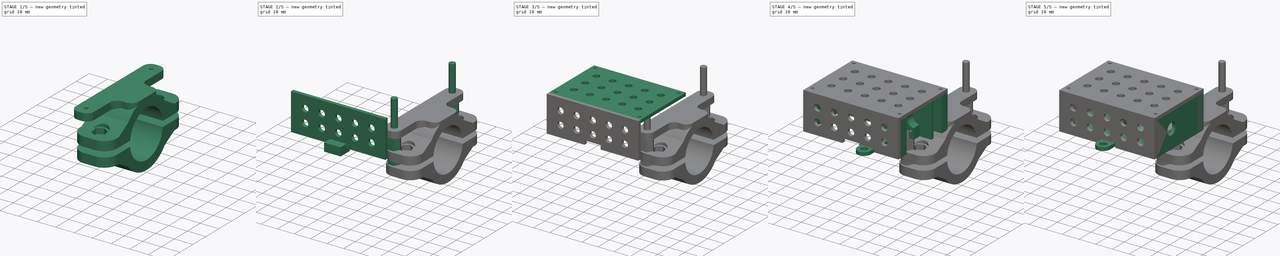
[diagram: build sequence overview — one tinted view per stage of 5, left to right]
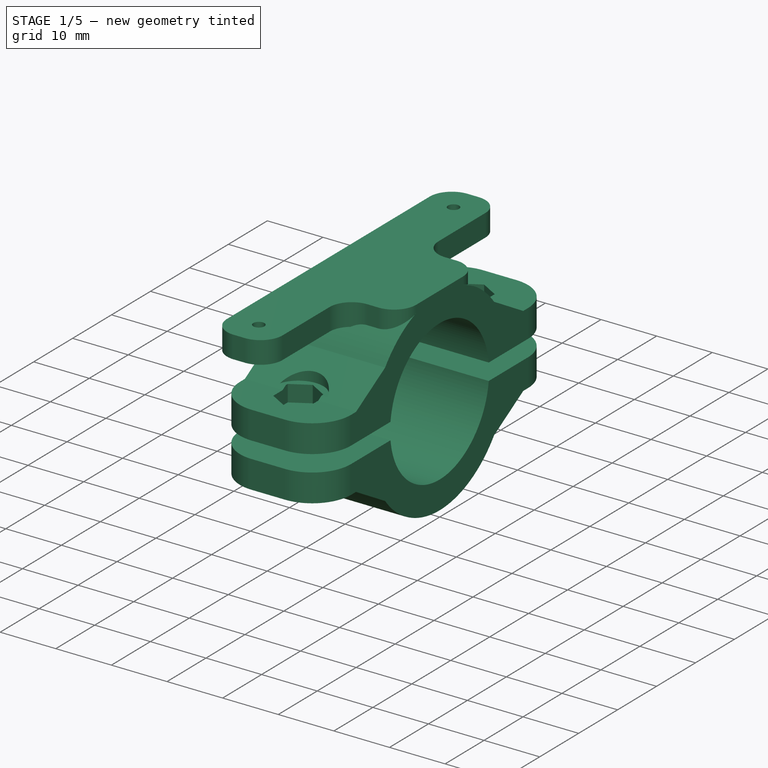
[diagram: stage 1 of 5 — iso view after this stage's code; geometry added in this stage tinted green]
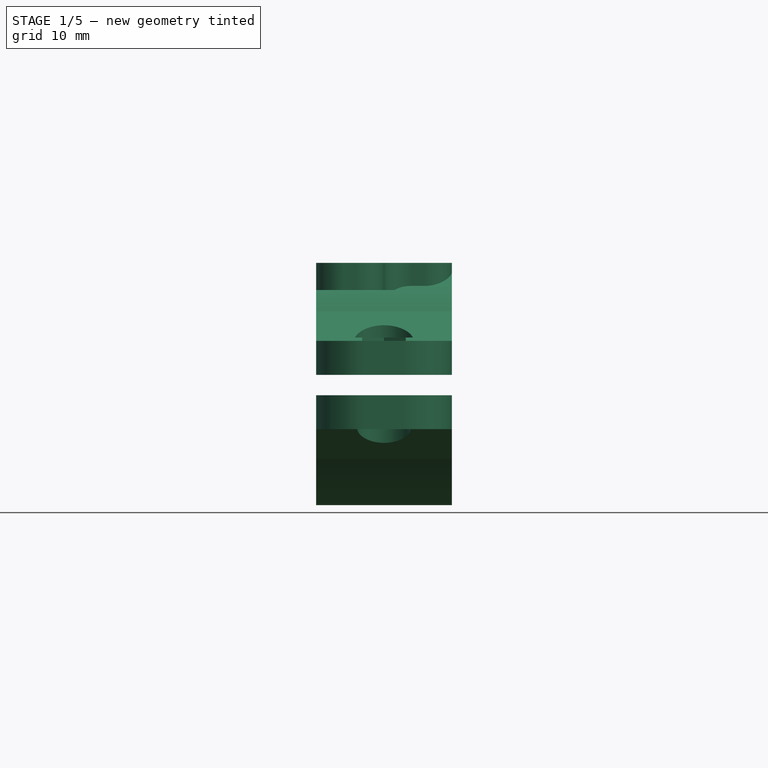
[diagram: stage 1 of 5 — front view after this stage's code; geometry added in this stage tinted green]
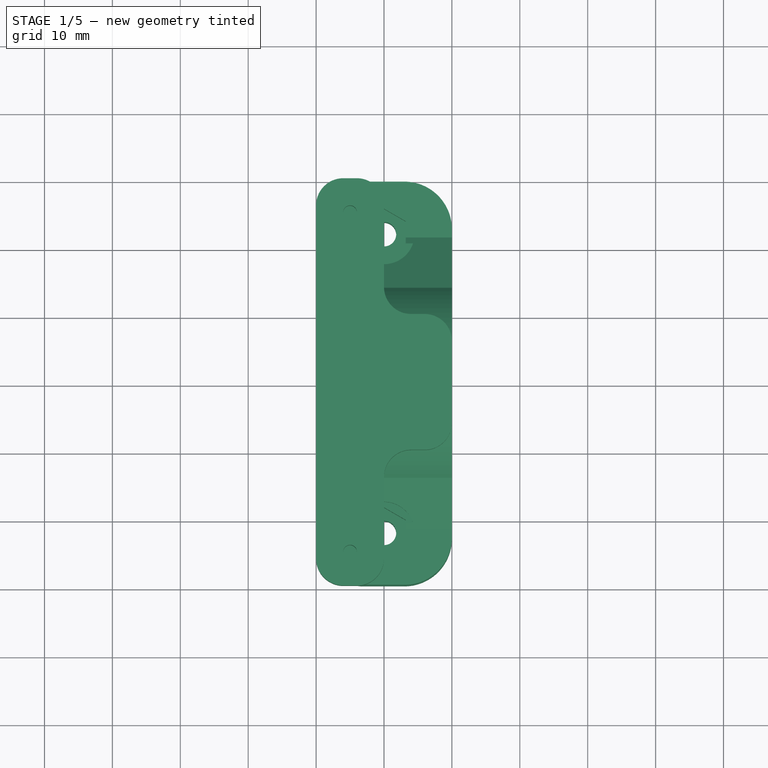
[diagram: stage 1 of 5 — top view after this stage's code; geometry added in this stage tinted green]
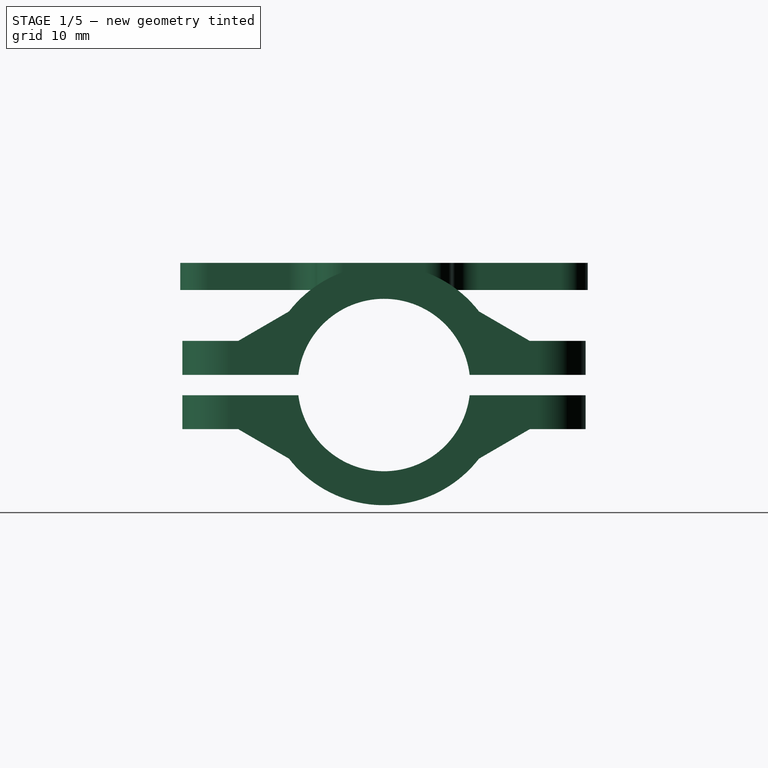
[diagram: stage 1 of 5 — right view after this stage's code; geometry added in this stage tinted green]
FCSTD DOCUMENT  (FreeCAD 0.18.4R)
Label: mosfet_aod4184_box_screw_version
License: All rights reserved
LicenseURL: http://en.wikipedia.org/wiki/All_rights_reserved
objects: Sketcher::SketchObject×11, PartDesign::Pad×9, PartDesign::Body×9, Part::Cut×8, Part::Cylinder×6, Part::FeaturePython×6, Part::Box×5, Part::Compound×3, App::Part×3, PartDesign::Revolution×2, Part::Feature×2, Part::MultiFuse×2, Part::Fillet×2, Spreadsheet::Sheet×1
note: 76 computed .brp shape members not serialized (recipe doc carries the construction recipe); baked Part::Feature solids carry a one-line shape summary decoded from their .brp

FEATURE [App::Part] Part001  label="top cover"
  Group = -> [Array001,Box,Cylinder001,Cut003,Box001,Array002,Cylinder002,Cut004,Array003,Cylinder003,Cut005,Box002,Cut006,Compound001]
  Origin = -> Origin010
FEATURE [Part::Feature] Cut023015001  label="tube block cut002"
  Placement = pos=(0,30,-14) rot=(0.57735,0.57735,0.57735;2.0944rad)
  shape: bbox 20 x 59.4 x 35.4 mm, 58 faces, 2 solids (baked)
FEATURE [Part::Feature] Body032001  label="m3 nut hole"
  Placement = pos=(0,0,0) rot=(1,0,0;1.5708rad)
  shape: bbox 7.4 x 6.409 x 20 mm, 8 faces (baked)
FEATURE [Part::Box] Box004  label="mount cube"
  AttacherType = Attacher::AttachEngine3D
  Height = 4
  Length = 10
  Width = 60
FEATURE [Part::Fillet] Fillet  label="ear mount fillet"
  Base = -> Box004
  Edges = 4 edges r=4: [Edge1,Edge3,Edge5,Edge7]
FEATURE [Part::Box] Box005  label="mount plate"
  AttacherType = Attacher::AttachEngine3D
  Height = 4
  Length = 20
  Placement = pos=(0,20,0) rot=(0,0,1;0rad)
  Width = 20
FEATURE [Part::MultiFuse] Fusion001  label="ear mount fusion"
  Shapes = -> [Fillet,Box005]
FEATURE [Part::Fillet] Fillet001  label="ear mount fusion fillet"
  Base = -> Fusion001
  Edges = 4 edges r=4: [Edge41,Edge46,Edge47,Edge48]
FEATURE [Part::Cylinder] Cylinder005  label="Cylinder003"
  Angle = 360
  AttacherType = Attacher::AttachEngine3D
  Height = 20
  Placement = pos=(0,0,40) rot=(0,0,1;0rad)
  Radius = 1
FEATURE [Part::FeaturePython] Array005  label="ear screw hole fusion array"  # Draft array (typed FeaturePython)
  Angle = 360
  ArrayType = 0
  Axis = (0,0,1)
  Base = -> Cylinder005
  Center = (0,0,0)
  Fuse = false
  IntervalAxis = (0,0,0)
  IntervalX = (1,0,0)
  IntervalY = (0,50,0)
  IntervalZ = (0,0,1)
  NumberPolar = 1
  NumberX = 1
  NumberY = 2
  NumberZ = 1
  Placement = pos=(5,5,-40) rot=(0,0,1;0rad)
  expr: IntervalY.y = p.box_sz_y + 10mm
FEATURE [Part::Cut] Cut023015002  label="ear mount cut"
  Base = -> Fillet001
  Tool = -> Array005
FEATURE [Part::Compound] Compound002  label="25mm pipe attach compound"
  Links = -> [Cut023015001,Cut023015002]
FEATURE [App::Part] Part002  label="25mm pipe attach part"
  Group = -> [Cut023015001,Body032001,Cylinder004,Fusion,Array004,Cut023015002,Fusion001,Fillet001,Box005,Box004,Fillet,Compound002]
  Origin = -> Origin011
  Placement = pos=(-15,-30,-4) rot=(0,0,1;0rad)
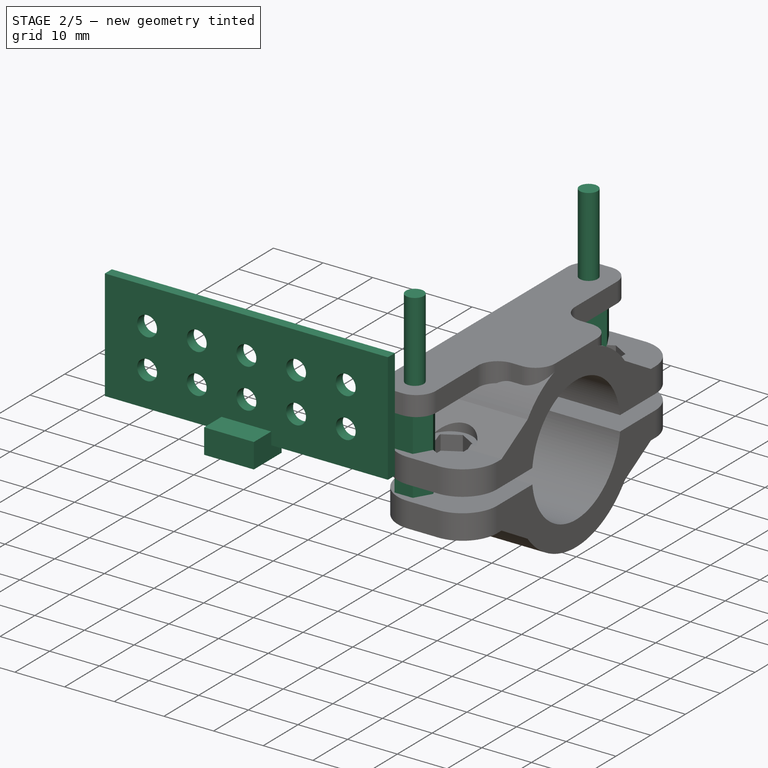
[diagram: stage 2 of 5 — iso view after this stage's code; geometry added in this stage tinted green]
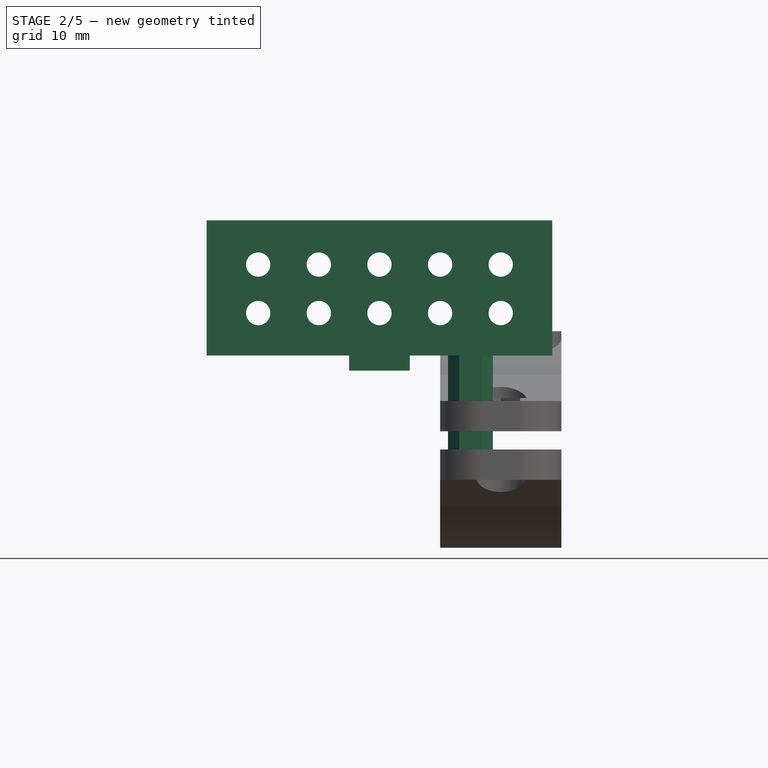
[diagram: stage 2 of 5 — front view after this stage's code; geometry added in this stage tinted green]
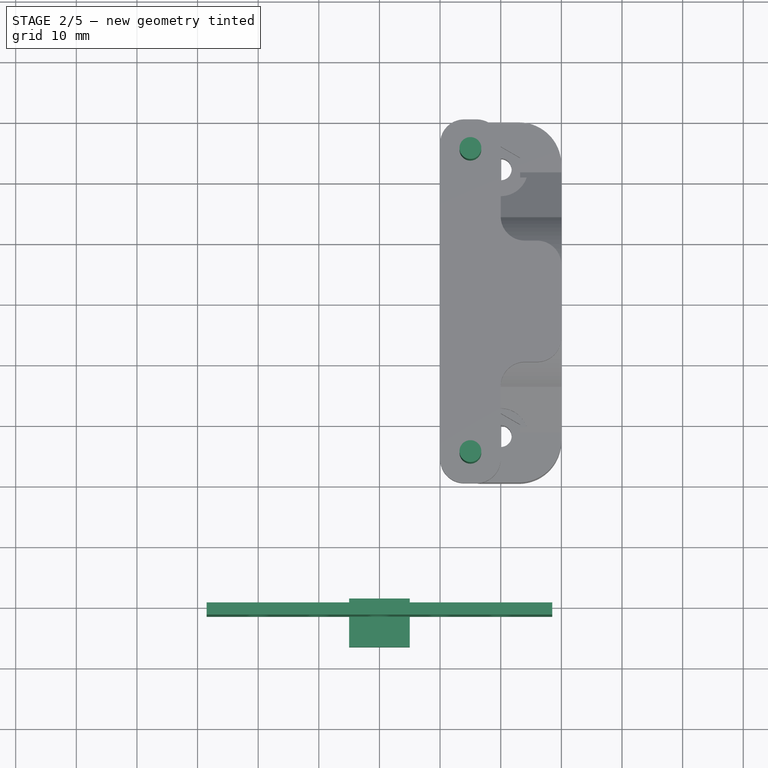
[diagram: stage 2 of 5 — top view after this stage's code; geometry added in this stage tinted green]
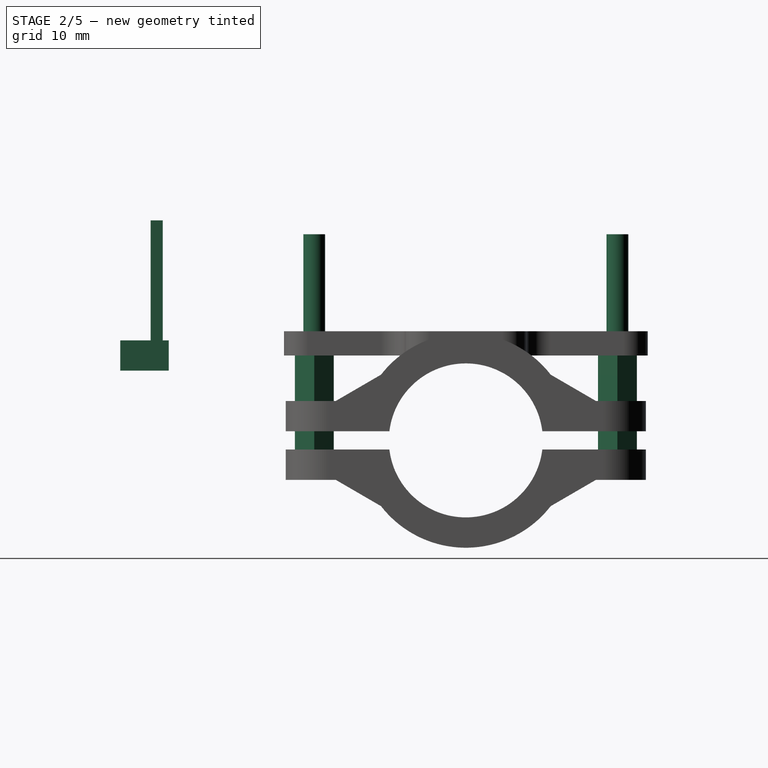
[diagram: stage 2 of 5 — right view after this stage's code; geometry added in this stage tinted green]
FEATURE [Part::Box] Box001  label="wall_cube"
  AttacherType = Attacher::AttachEngine3D
  Height = 22.3
  Length = 57
  Placement = pos=(-38.5,-22,0) rot=(0,0,1;0rad)
  Width = 2
  expr: Placement.Base.y = -p.wall - 20mm
  expr: Height = p.box_sz_z
  expr: Width = p.wall
  expr: Length = p.box_sz_x
FEATURE [Part::Cylinder] Cylinder003  label="Cylinder001"
  Angle = 360
  AttacherType = Attacher::AttachEngine3D
  Height = 10
  Placement = pos=(-30,-16,7) rot=(1,0,0;1.5708rad)
  Radius = 2
FEATURE [Part::FeaturePython] Array003  # Draft array (typed FeaturePython)
  Angle = 360
  ArrayType = 0
  Axis = (0,0,1)
  Base = -> Cylinder003
  Center = (0,0,0)
  Fuse = false
  IntervalAxis = (0,0,0)
  IntervalX = (10,0,0)
  IntervalY = (0,0,0)
  IntervalZ = (0,0,8)
  NumberPolar = 1
  NumberX = 5
  NumberY = 1
  NumberZ = 2
FEATURE [Part::Cut] Cut005  label="wall cut"
  Base = -> Box001
  Tool = -> Array003
FEATURE [Part::Box] Box002  label="Cube"
  AttacherType = Attacher::AttachEngine3D
  Height = 5
  Length = 10
  Placement = pos=(-15,-27,-2.5) rot=(0,0,1;0rad)
  Width = 8
FEATURE [Part::Cylinder] Cylinder004  label="Cylinder002"
  Angle = 360
  AttacherType = Attacher::AttachEngine3D
  Height = 20
  Placement = pos=(0,0,40) rot=(0,0,1;0rad)
  Radius = 1.8
FEATURE [Part::MultiFuse] Fusion  label="bolt nut hole fusion"
  Shapes = -> [Body032001,Cylinder004]
FEATURE [Part::FeaturePython] Array004  label="bolt nut hole fusion array"  # Draft array (typed FeaturePython)
  Angle = 360
  ArrayType = 0
  Axis = (0,0,1)
  Base = -> Fusion
  Center = (0,0,0)
  Fuse = false
  IntervalAxis = (0,0,0)
  IntervalX = (1,0,0)
  IntervalY = (0,50,0)
  IntervalZ = (0,0,1)
  NumberPolar = 1
  NumberX = 1
  NumberY = 2
  NumberZ = 1
  Placement = pos=(5,5,-40) rot=(0,0,1;0rad)
  expr: IntervalY.y = p.box_sz_y + 10mm
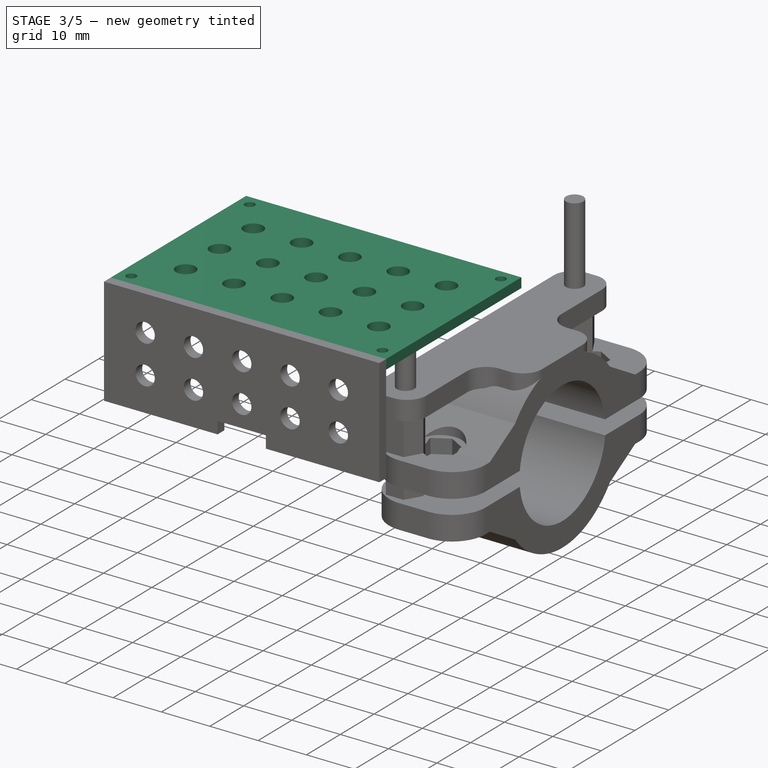
[diagram: stage 3 of 5 — iso view after this stage's code; geometry added in this stage tinted green]
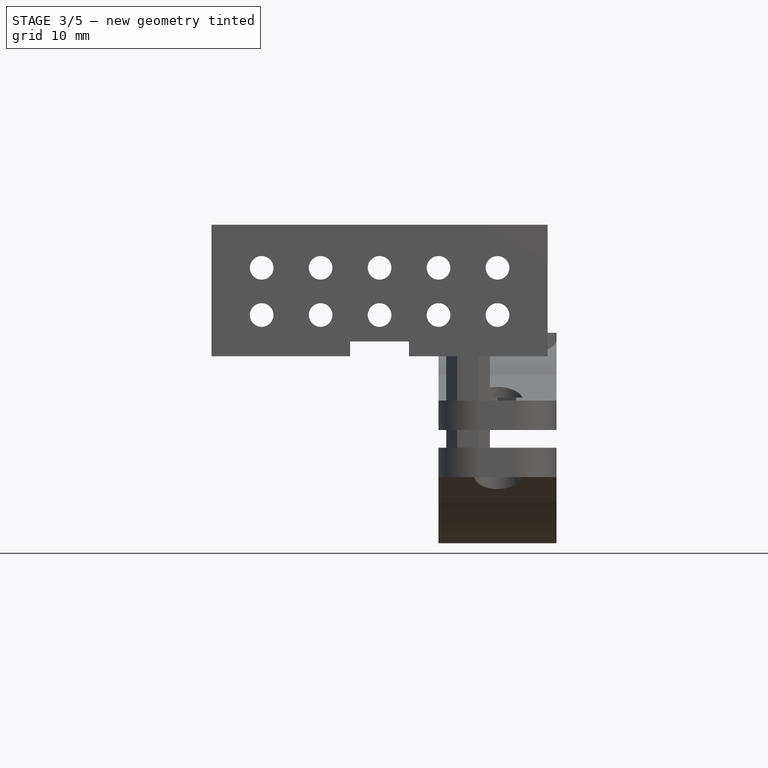
[diagram: stage 3 of 5 — front view after this stage's code; geometry added in this stage tinted green]
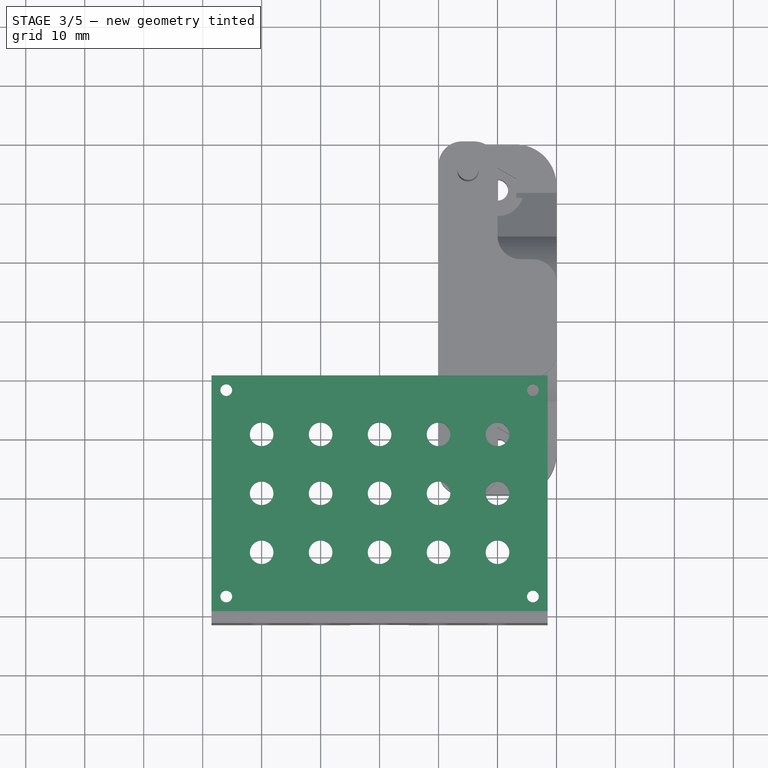
[diagram: stage 3 of 5 — top view after this stage's code; geometry added in this stage tinted green]
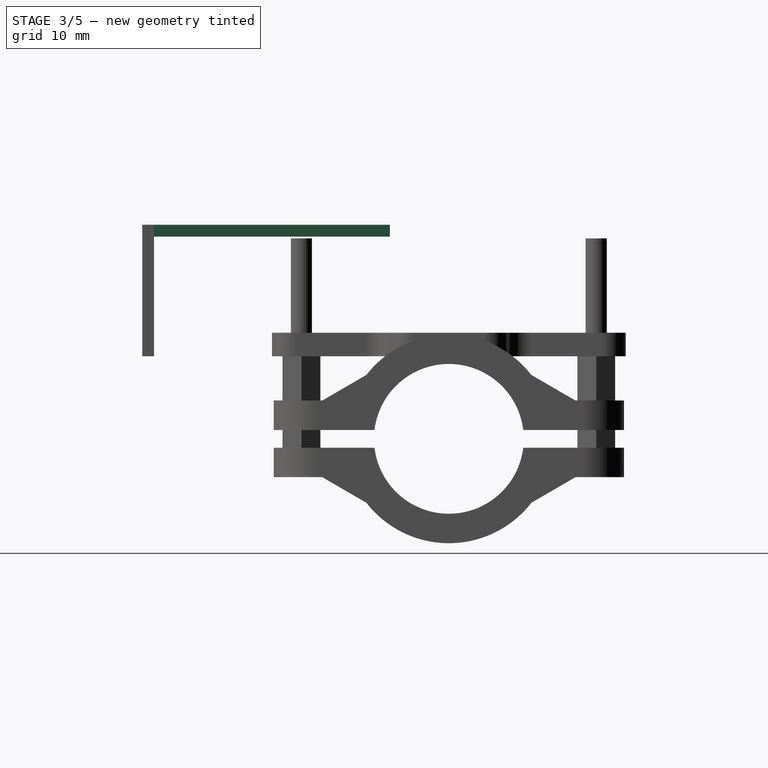
[diagram: stage 3 of 5 — right view after this stage's code; geometry added in this stage tinted green]
FEATURE [App::Part] Part  label="pcb_box"
  Group = -> [Body,Body002,Body003,Body004,Body005,Body006,Body007,Body008,Cut001,Cut002,Cut,Cylinder,Compound,Array]
  Origin = -> Origin002
FEATURE [Part::Box] Box  label="top_cube"
  AttacherType = Attacher::AttachEngine3D
  Height = 2
  Length = 57
  Placement = pos=(-38.5,-20,20.3) rot=(0,0,1;0rad)
  Width = 40
  expr: Placement.Base.z = p.box_sz_z - p.wall
  expr: Height = p.wall
  expr: Width = p.box_sz_y
  expr: Length = p.box_sz_x
FEATURE [Part::Cylinder] Cylinder001  label="a hole"
  Angle = 360
  AttacherType = Attacher::AttachEngine3D
  Height = 10
  Placement = pos=(-36,-17.5,18) rot=(0,0,1;0rad)
  Radius = 1
FEATURE [Part::FeaturePython] Array001  # Draft array (typed FeaturePython)
  Angle = 360
  ArrayType = 0
  Axis = (0,0,1)
  Base = -> Cylinder001
  Center = (0,0,0)
  Fuse = false
  IntervalAxis = (0,0,0)
  IntervalX = (52,0,0)
  IntervalY = (0,35,0)
  IntervalZ = (0,0,1)
  NumberPolar = 1
  NumberX = 2
  NumberY = 2
  NumberZ = 1
  expr: IntervalY.y = p.box_sz_y - 5mm
  expr: IntervalX.x = p.box_sz_x - 5mm
FEATURE [Part::Cut] Cut003
  Base = -> Box
  Tool = -> Array001
FEATURE [Part::Cylinder] Cylinder002  label="Cylinder"
  Angle = 360
  AttacherType = Attacher::AttachEngine3D
  Height = 10
  Placement = pos=(-30,-10,17) rot=(0,0,1;0rad)
  Radius = 2
FEATURE [Part::FeaturePython] Array002  # Draft array (typed FeaturePython)
  Angle = 360
  ArrayType = 0
  Axis = (0,0,1)
  Base = -> Cylinder002
  Center = (0,0,0)
  Fuse = false
  IntervalAxis = (0,0,0)
  IntervalX = (10,0,0)
  IntervalY = (0,10,0)
  IntervalZ = (0,0,1)
  NumberPolar = 1
  NumberX = 5
  NumberY = 3
  NumberZ = 1
FEATURE [Part::Cut] Cut004  label="top cut"
  Base = -> Cut003
  Tool = -> Array002
FEATURE [Part::Cut] Cut006  label="wall cut 1"
  Base = -> Cut005
  Tool = -> Box002
FEATURE [Part::Compound] Compound001  label="top cover compound"
  Links = -> [Cut004,Cut006]
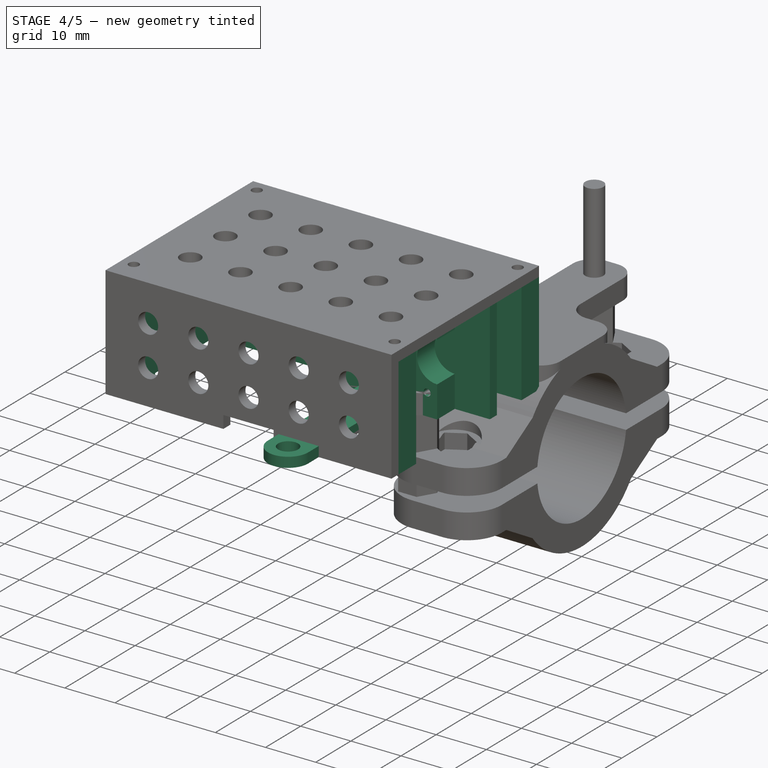
[diagram: stage 4 of 5 — iso view after this stage's code; geometry added in this stage tinted green]
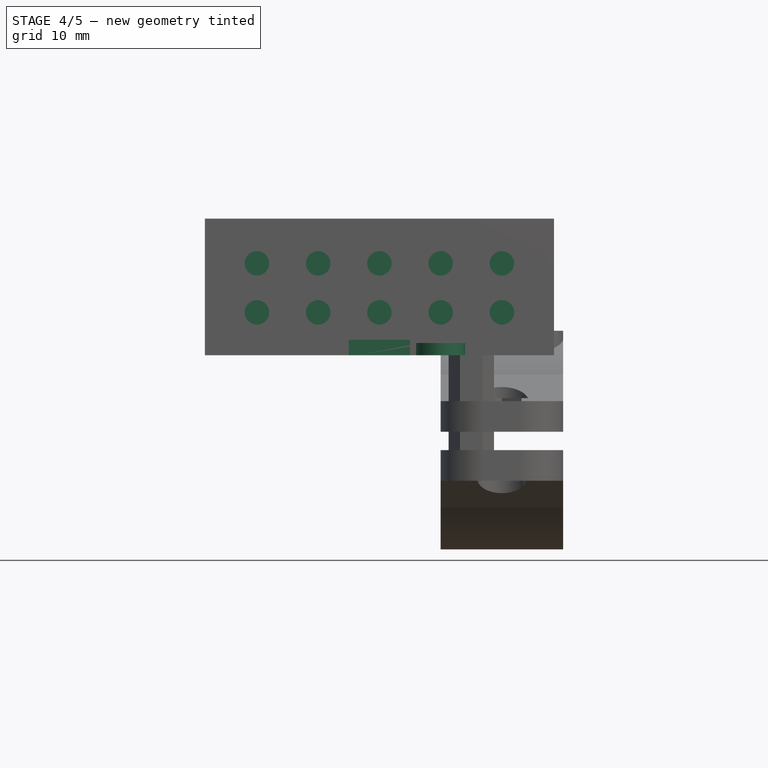
[diagram: stage 4 of 5 — front view after this stage's code; geometry added in this stage tinted green]
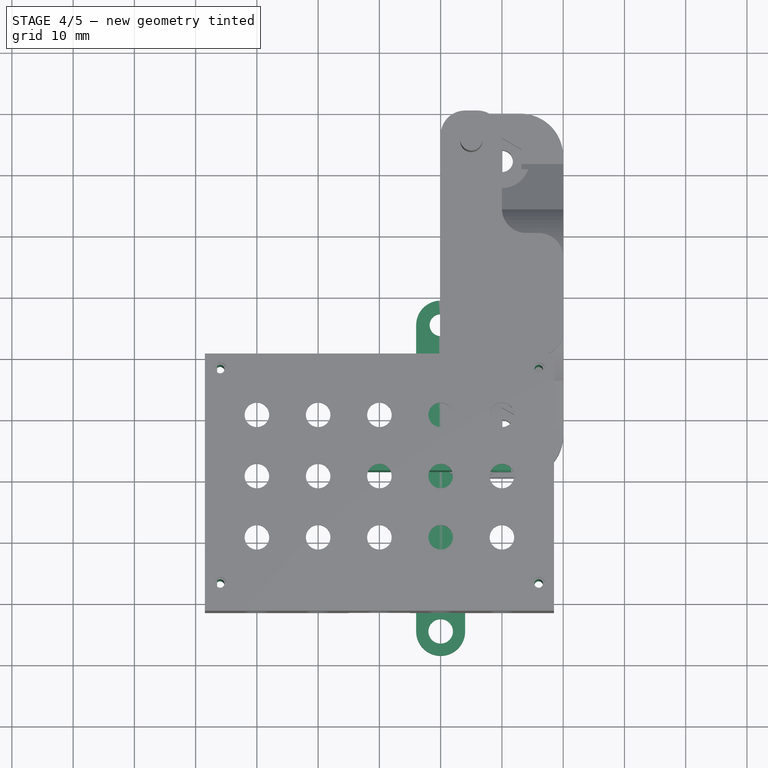
[diagram: stage 4 of 5 — top view after this stage's code; geometry added in this stage tinted green]
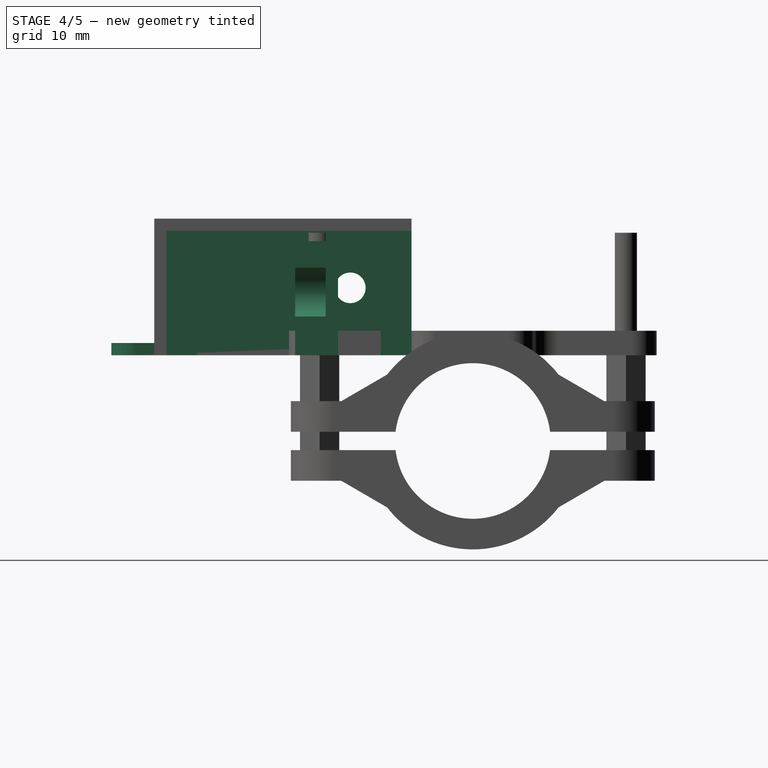
[diagram: stage 4 of 5 — right view after this stage's code; geometry added in this stage tinted green]
FEATURE [PartDesign::Body] Body005  label="power socket mockup"
  Group = -> [Sketch006,Revolution]
  Origin = -> Origin006
  Placement = pos=(-36,-5.5,11) rot=(0,0,1;0rad)
  Tip = -> Revolution
FEATURE [PartDesign::Pad] Pad
  Length = 2
  Length2 = 100
  Placement = pos=(0,0,0) rot=(1,0,0;1.5708rad)
  Profile = -> Sketch001
  Type = 0
  expr: Length = p.wall
FEATURE [PartDesign::Body] Body002  label="bottom body"
  Group = -> [Sketch004,Pad004]
  Origin = -> Origin003
  Tip = -> Pad004
FEATURE [PartDesign::Pad] Pad005
  Length = 2
  Length2 = 100
  Placement = pos=(0,0,0) rot=(0.57735,0.57735,0.57735;2.0944rad)
  Profile = -> Sketch
  Type = 0
  expr: Length = p.wall
FEATURE [Sketcher::SketchObject] Sketch008  label="pcb_under"
  MapMode = 5
  Placement = pos=(0,6,0) rot=(1,0,0;1.5708rad)
  Support = -> [Pad]
  expr: Constraints[13] = p.pcb_hole_offset + 0.3mm
  expr: Constraints[6] = p.pcb_hole_offset
  expr: Constraints[5] = p.pcb_hole_dist
  sketch-geometry (8):
    g0: LineSegment StartX=11.5 StartY=0 StartZ=0 EndX=-13.5 EndY=0 EndZ=0
    g1: LineSegment StartX=-13.5 StartY=18.62 StartZ=0 EndX=11.5 EndY=18.62 EndZ=0
    g2: Circle CenterX=9.5 CenterY=16.32 CenterZ=0 NormalX=0 NormalY=0 NormalZ=1 AngleXU=0 Radius=0.7
    g3: Circle CenterX=9.5 CenterY=4.32 CenterZ=0 NormalX=0 NormalY=0 NormalZ=1 AngleXU=0 Radius=0.7
    g4: LineSegment StartX=-13.5 StartY=18.62 StartZ=0 EndX=-13.5 EndY=0 EndZ=0
    g5: LineSegment StartX=11.5 StartY=0 StartZ=0 EndX=11.5 EndY=6.32 EndZ=0
    g6: ArcOfCircle CenterX=11.5 CenterY=10.32 CenterZ=0 NormalX=0 NormalY=0 NormalZ=1 AngleXU=0 Radius=4 StartAngle=1.5708 EndAngle=4.71239
    g7: LineSegment StartX=11.5 StartY=18.62 StartZ=0 EndX=11.5 EndY=14.32 EndZ=0
  constraints (25):
    c: Horizontal(g0)
    c: Horizontal(g1)
    c: Radius(g2) = 0.7
    c: DistanceX(g3,g2) = 0
    c: Equal(g2,g3)
    c: DistanceY(g3,g2) = 12
    c: DistanceX(g3,g0) = 2
    c: DistanceY(g-1,g0) = 0
    c: DistanceX(g0,g-1) = 13.5
    c: Coincident(g4,g1)
    c: Coincident(g4,g0)
    c: Vertical(g4)
    c: DistanceX(g0,g0) = 25
    c: DistanceY(g2,g1) = 2.3
    c: DistanceY(g4,g4) = 18.62
    c: Coincident(g5,g0)
    c: Vertical(g5)
    c: Coincident(g6,g5)
    c: DistanceX(g5,g6) = 0
    c: DistanceY(g3,g5) = 2
    c: Coincident(g7,g1)
    c: Vertical(g7)
    c: Coincident(g6,g7)
    c: DistanceY(g6,g2) = 2
    c: Radius(g6) = 4
FEATURE [Part::Cylinder] Cylinder  label="wire_hole"
  Angle = 360
  AttacherType = Attacher::AttachEngine3D
  Height = 10
  Placement = pos=(-41,10,11) rot=(0,1,0;1.5708rad)
  Radius = 2.5
FEATURE [Part::Cut] Cut  label="power cut"
  Base = -> Body003
  Tool = -> Cylinder
FEATURE [PartDesign::Pad] Pad007
  BaseFeature = -> Pad
  Length = 5
  Length2 = 100
  Placement = pos=(0,0,0) rot=(1,0,0;1.5708rad)
  Profile = -> Sketch008
  Type = 0
FEATURE [PartDesign::Body] Body  label="pcb_side_body"
  Group = -> [Sketch001,Pad,Sketch008,Pad007]
  Origin = -> Origin
  Placement = pos=(0,12,0) rot=(0,0,1;0rad)
  Tip = -> Pad007
FEATURE [Sketcher::SketchObject] Sketch009
  MapMode = 5
  Support = -> [XY_Plane008]
  sketch-geometry (5):
    g0: LineSegment StartX=-2.5 StartY=2.5 StartZ=0 EndX=2.5 EndY=2.5 EndZ=0
    g1: LineSegment StartX=2.5 StartY=2.5 StartZ=0 EndX=2.5 EndY=-2.5 EndZ=0
    g2: LineSegment StartX=2.5 StartY=-2.5 StartZ=0 EndX=-2.5 EndY=-2.5 EndZ=0
    g3: LineSegment StartX=-2.5 StartY=-2.5 StartZ=0 EndX=-2.5 EndY=2.5 EndZ=0
    g4: Circle CenterX=0 CenterY=0 CenterZ=0 NormalX=0 NormalY=0 NormalZ=1 AngleXU=0 Radius=0.7
  constraints (14):
    c: Coincident(g0,g1)
    c: Coincident(g1,g2)
    c: Coincident(g2,g3)
    c: Coincident(g3,g0)
    c: Horizontal(g0)
    c: Horizontal(g2)
    c: Vertical(g1)
    c: Vertical(g3)
    c: Coincident(g4,g-1)
    c: DistanceX(g2,g2) = 5
    c: Equal(g1,g2)
    c: DistanceX(g0,g4) = 2.5
    c: DistanceY(g4,g0) = 2.5
    c: Radius(g4) = 0.7
FEATURE [PartDesign::Pad] Pad008
  Length = 20.3
  Length2 = 100
  Profile = -> Sketch009
  Type = 0
  expr: Length = p.box_sz_z - p.wall
FEATURE [PartDesign::Body] Body007  label="attachment_body"
  Group = -> [Sketch009,Pad008]
  Origin = -> Origin008
  Placement = pos=(-36,-17.5,0) rot=(0,0,1;0rad)
  Tip = -> Pad008
FEATURE [Part::FeaturePython] Array  # Draft array (typed FeaturePython)
  Angle = 360
  ArrayType = 0
  Axis = (0,0,1)
  Base = -> Body007
  Center = (0,0,0)
  Fuse = false
  IntervalAxis = (0,0,0)
  IntervalX = (52,0,0)
  IntervalY = (0,35,0)
  IntervalZ = (0,0,1)
  NumberPolar = 1
  NumberX = 2
  NumberY = 2
  NumberZ = 1
  expr: IntervalY.y = p.box_sz_y - 5mm
  expr: IntervalX.x = p.box_sz_x - 5mm
FEATURE [Sketcher::SketchObject] Sketch010  label="mount"
  MapMode = 5
  expr: Constraints[0] = p.box_sz_y + 10mm
  sketch-geometry (6):
    g0: LineSegment StartX=4 StartY=25 StartZ=0 EndX=4 EndY=-25 EndZ=0
    g1: LineSegment StartX=-4 StartY=-25 StartZ=0 EndX=-4 EndY=25 EndZ=0
    g2: ArcOfCircle CenterX=6e-15 CenterY=25 CenterZ=0 NormalX=0 NormalY=0 NormalZ=1 AngleXU=0 Radius=4 StartAngle=5e-16 EndAngle=3.14159
    g3: ArcOfCircle CenterX=0 CenterY=-25 CenterZ=0 NormalX=0 NormalY=0 NormalZ=1 AngleXU=0 Radius=4 StartAngle=3.14159 EndAngle=6.28319
    g4: Circle CenterX=6e-15 CenterY=25 CenterZ=0 NormalX=0 NormalY=0 NormalZ=1 AngleXU=0 Radius=1.8
    g5: Circle CenterX=0 CenterY=-25 CenterZ=0 NormalX=0 NormalY=0 NormalZ=1 AngleXU=0 Radius=2
  constraints (13):
    c: DistanceY(g0,g0) = 50
    c: Equal(g1,g0)
    c: DistanceX(g1,g0) = 8
    c: Symmetric(g0,g0,g-1)
    c: Tangent(g2,g1) = 1.5708
    c: Coincident(g4,g2)
    c: Coincident(g5,g3)
    c: Radius(g5) = 2
    c: Radius(g4) = 1.8
    c: Tangent(g3,g1) = 1.5708
    c: Tangent(g3,g0) = 1.5708
    c: Coincident(g2,g0)
    c: Symmetric(g0,g1,g-2)
FEATURE [PartDesign::Pad] Pad009
  Length = 2
  Length2 = 100
  Profile = -> Sketch010
  Type = 0
  expr: Length = p.wall
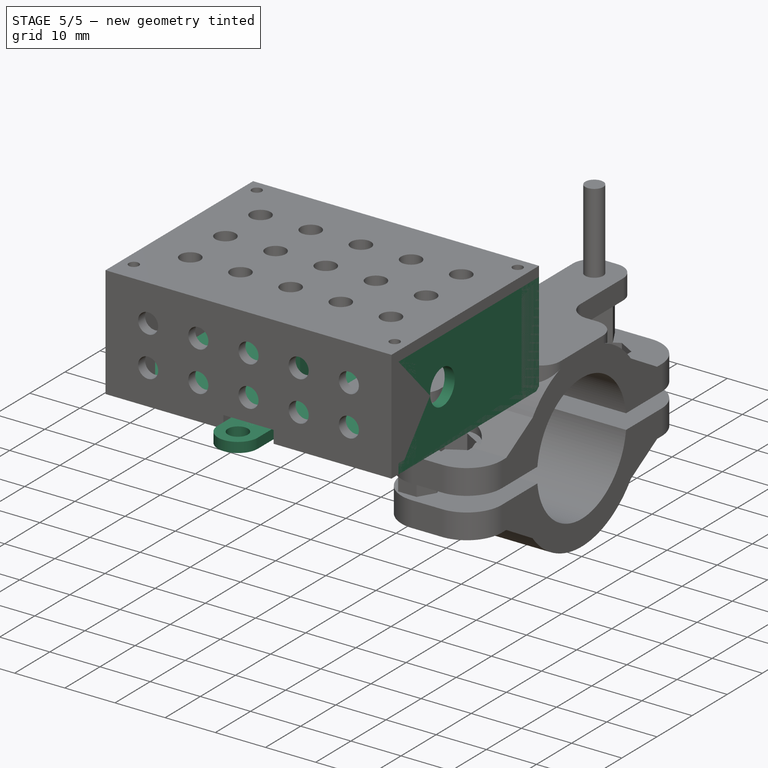
[diagram: stage 5 of 5 — iso view after this stage's code; geometry added in this stage tinted green]
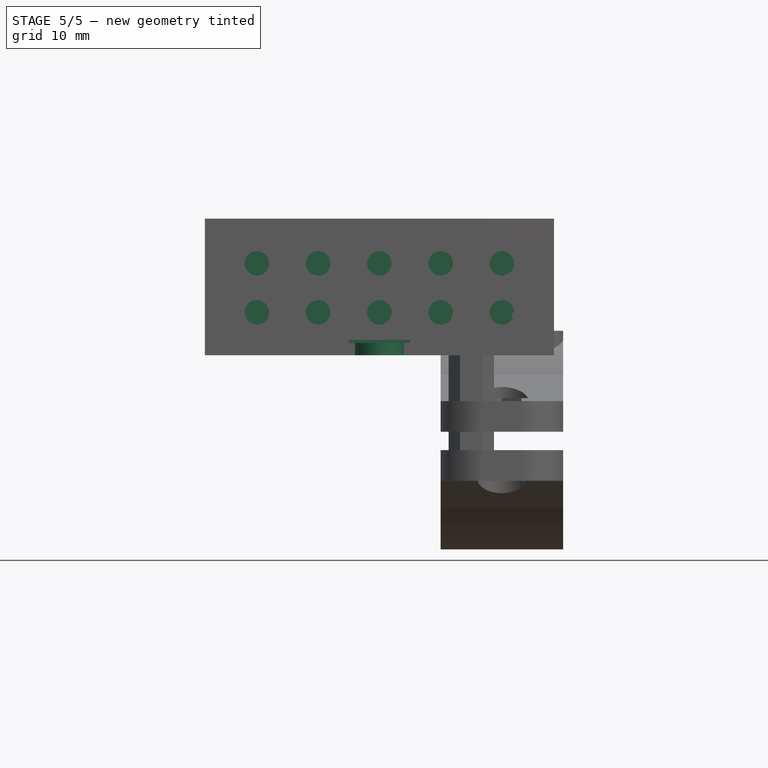
[diagram: stage 5 of 5 — front view after this stage's code; geometry added in this stage tinted green]
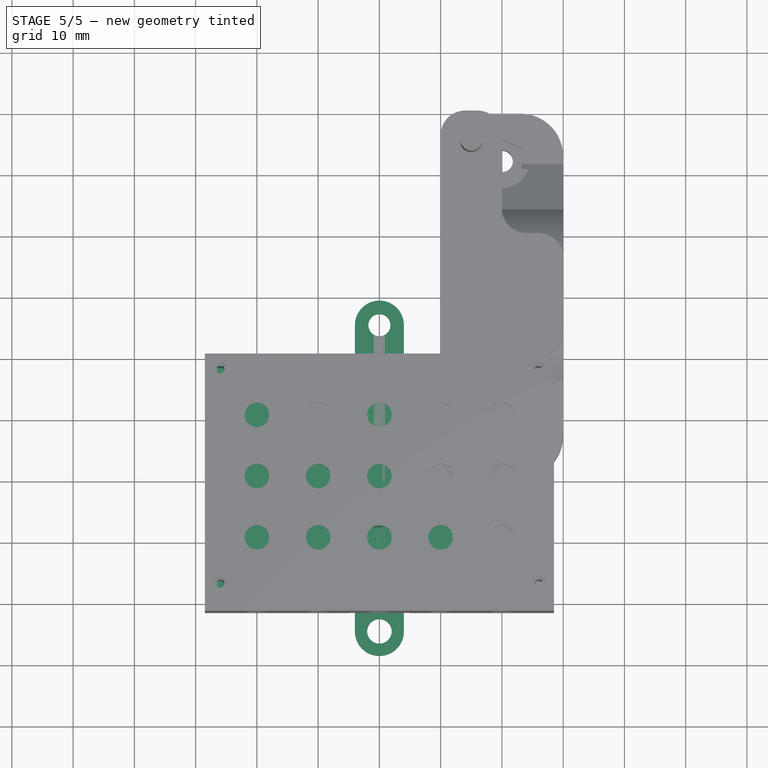
[diagram: stage 5 of 5 — top view after this stage's code; geometry added in this stage tinted green]
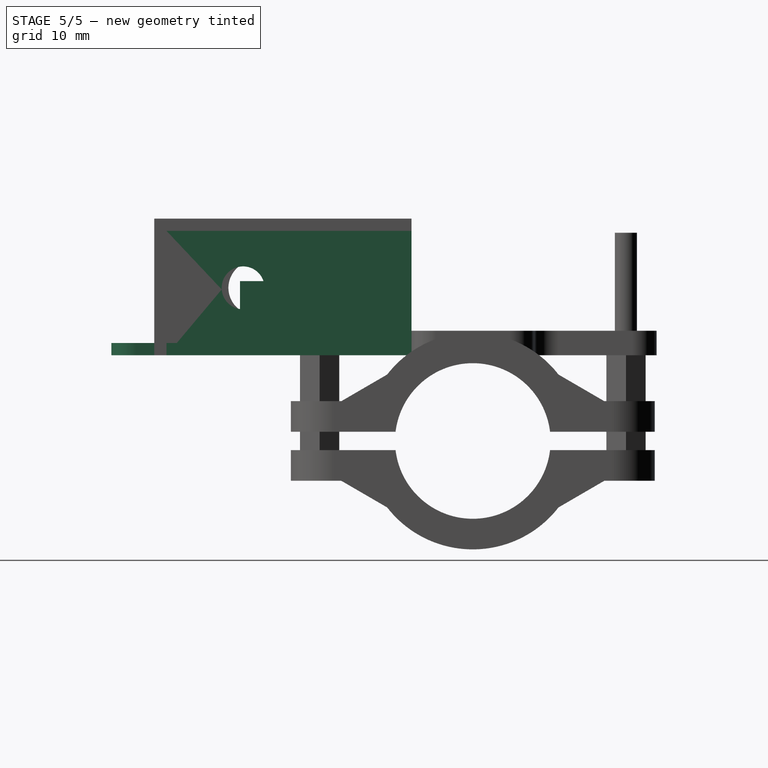
[diagram: stage 5 of 5 — right view after this stage's code; geometry added in this stage tinted green]
FEATURE [Sketcher::SketchObject] Sketch001  label="pcb_side"
  AttachmentOffset = pos=(0,0,-8) rot=(0,0,1;0rad)
  MapMode = 5
  Placement = pos=(0,8,1.8e-15) rot=(1,0,0;1.5708rad)
  Support = -> [XZ_Plane]
  expr: Constraints[10] = p.pcb_sz_x / 2 + p.wall
  expr: Constraints[8] = p.box_sz_z - p.wall
  expr: Constraints[7] = p.box_sz_x
  sketch-geometry (4):
    g0: LineSegment StartX=-38.5 StartY=20.3 StartZ=0 EndX=18.5 EndY=20.3 EndZ=0
    g1: LineSegment StartX=18.5 StartY=20.3 StartZ=0 EndX=18.5 EndY=0 EndZ=0
    g2: LineSegment StartX=18.5 StartY=0 StartZ=0 EndX=-38.5 EndY=0 EndZ=0
    g3: LineSegment StartX=-38.5 StartY=0 StartZ=0 EndX=-38.5 EndY=20.3 EndZ=0
  constraints (12):
    c: Coincident(g0,g1)
    c: Coincident(g1,g2)
    c: Coincident(g2,g3)
    c: Coincident(g3,g0)
    c: Horizontal(g2)
    c: Vertical(g1)
    c: Vertical(g3)
    c: DistanceX(g2,g2) = 57
    c: DistanceY(g1,g1) = 20.3
    c: DistanceY(g1,g-1) = 0
    c: DistanceX(g-1,g1) = 18.5
    c: Horizontal(g0)
FEATURE [Spreadsheet::Sheet] Spreadsheet  label="p"
  cells = A1=wall; B1(wall)==2mm; A2=pcb_sz_x; B2(pcb_sz_x)==33mm; A3=pcb_sz_y; B3(pcb_sz_y)==16.3mm; A4=pcb_sz_z; B4(pcb_sz_z)==1.5mm; A5=pcb_under; B5(pcb_under)==2.8mm; A6=pcb_hole_dist; B6(pcb_hole_dist)==12mm; A7=pcb_hole_offset; B7(pcb_hole_offset)==2mm; A9=box_sz_x; B9(box_sz_x)==pcb_sz_x + 20mm + 2 * wall; A10=box_sz_y; B10(box_sz_y)==40mm; A11=box_sz_z; B11(box_sz_z)==pcb_sz_y + 2mm + 2 * wall; A13=hex_diam; B13(hex_diam)==3mm; A14=gap width; B14(gap_width)==2mm
FEATURE [Sketcher::SketchObject] Sketch002  label="pcb"
  MapMode = 5
  Support = -> [XY_Plane001]
  expr: Constraints[10] = p.pcb_hole_dist
  expr: Constraints[8] = p.pcb_sz_y
  expr: Constraints[7] = p.pcb_sz_x
  sketch-geometry (6):
    g0: LineSegment StartX=-16.5 StartY=8.15 StartZ=0 EndX=16.5 EndY=8.15 EndZ=0
    g1: LineSegment StartX=16.5 StartY=8.15 StartZ=0 EndX=16.5 EndY=-8.15 EndZ=0
    g2: LineSegment StartX=16.5 StartY=-8.15 StartZ=0 EndX=-16.5 EndY=-8.15 EndZ=0
    g3: LineSegment StartX=-16.5 StartY=-8.15 StartZ=0 EndX=-16.5 EndY=8.15 EndZ=0
    g4: Circle CenterX=14.5 CenterY=6 CenterZ=0 NormalX=0 NormalY=0 NormalZ=1 AngleXU=0 Radius=1.5
    g5: Circle CenterX=14.5 CenterY=-6 CenterZ=0 NormalX=0 NormalY=0 NormalZ=1 AngleXU=0 Radius=1.5
  constraints (16):
    c: Coincident(g0,g1)
    c: Coincident(g1,g2)
    c: Coincident(g2,g3)
    c: Coincident(g3,g0)
    c: Horizontal(g2)
    c: Vertical(g3)
    c: Symmetric(g0,g0,g-2)
    c: DistanceX(g0,g0) = 33
    c: DistanceY(g1,g1) = 16.3
    c: Symmetric(g1,g0,g-1)
    c: DistanceY(g5,g4) = 12
    c: DistanceX(g4,g5) = 0
    c: Radius(g4) = 1.5
    c: Equal(g4,g5)
    c: DistanceX(g4,g0) = 2
    c: DistanceY(g4,g0) = 2.15
FEATURE [PartDesign::Pad] Pad002
  Length = 1.5
  Length2 = 100
  Profile = -> Sketch002
  Type = 0
  expr: Length = p.pcb_sz_z
FEATURE [Sketcher::SketchObject] Sketch003  label="screw_connector"
  AttachmentOffset = pos=(0,0,1.5) rot=(0,0,1;0rad)
  MapMode = 5
  Placement = pos=(0,0,1.5) rot=(0,0,1;0rad)
  Support = -> [XY_Plane001]
  expr: AttachmentOffset.Base.z = p.pcb_sz_z
  expr: Constraints[10] = p.pcb_sz_x / 2 + 1mm
  sketch-geometry (4):
    g0: LineSegment StartX=-17.5 StartY=8 StartZ=0 EndX=-9.5 EndY=8 EndZ=0
    g1: LineSegment StartX=-9.5 StartY=8 StartZ=0 EndX=-9.5 EndY=-8 EndZ=0
    g2: LineSegment StartX=-9.5 StartY=-8 StartZ=0 EndX=-17.5 EndY=-8 EndZ=0
    g3: LineSegment StartX=-17.5 StartY=-8 StartZ=0 EndX=-17.5 EndY=8 EndZ=0
  constraints (11):
    c: Coincident(g0,g1)
    c: Coincident(g1,g2)
    c: Coincident(g2,g3)
    c: Coincident(g3,g0)
    c: Horizontal(g0)
    c: Horizontal(g2)
    c: Vertical(g1)
    c: DistanceY(g3,g3) = 16
    c: Symmetric(g0,g2,g-1)
    c: DistanceX(g0,g0) = 8
    c: DistanceX(g2,g-1) = 17.5
FEATURE [PartDesign::Pad] Pad003
  BaseFeature = -> Pad002
  Length = 10.6
  Length2 = 100
  Profile = -> Sketch003
  Type = 0
FEATURE [PartDesign::Body] Body001  label="pcb_mockup"
  Group = -> [Sketch002,Pad002,Sketch003,Pad003]
  Origin = -> Origin001
  Placement = pos=(-5,13,10.5) rot=(1,0,0;1.5708rad)
  Tip = -> Pad003
FEATURE [Sketcher::SketchObject] Sketch004  label="bottom"
  MapMode = 5
  Support = -> [XY_Plane003]
  expr: Constraints[8] = p.pcb_sz_x / 2 + p.wall
  expr: Constraints[9] = p.box_sz_y
  expr: Constraints[7] = p.box_sz_x
  sketch-geometry (4):
    g0: LineSegment StartX=-38.5 StartY=20 StartZ=0 EndX=18.5 EndY=20 EndZ=0
    g1: LineSegment StartX=18.5 StartY=20 StartZ=0 EndX=18.5 EndY=-20 EndZ=0
    g2: LineSegment StartX=18.5 StartY=-20 StartZ=0 EndX=-38.5 EndY=-20 EndZ=0
    g3: LineSegment StartX=-38.5 StartY=-20 StartZ=0 EndX=-38.5 EndY=20 EndZ=0
  constraints (11):
    c: Coincident(g0,g1)
    c: Coincident(g1,g2)
    c: Coincident(g2,g3)
    c: Coincident(g3,g0)
    c: Horizontal(g0)
    c: Horizontal(g2)
    c: Vertical(g3)
    c: DistanceX(g0,g0) = 57
    c: DistanceX(g-1,g0) = 18.5
    c: DistanceY(g1,g1) = 40
    c: Symmetric(g0,g1,g-1)
FEATURE [Sketcher::SketchObject] Sketch
  AttachmentOffset = pos=(0,0,28.5) rot=(0,0,1;0rad)
  MapMode = 5
  Placement = pos=(28.5,-6.3e-15,6.3e-15) rot=(0.57735,0.57735,0.57735;2.0944rad)
  Support = -> [YZ_Plane004]
  expr: Constraints[9] = p.box_sz_y
  expr: AttachmentOffset.Base.z = p.box_sz_x / 2
  expr: Constraints[8] = p.box_sz_z - p.wall
  sketch-geometry (4):
    g0: LineSegment StartX=-20 StartY=20.3 StartZ=0 EndX=20 EndY=20.3 EndZ=0
    g1: LineSegment StartX=20 StartY=20.3 StartZ=0 EndX=20 EndY=0 EndZ=0
    g2: LineSegment StartX=20 StartY=0 StartZ=0 EndX=-20 EndY=0 EndZ=0
    g3: LineSegment StartX=-20 StartY=0 StartZ=0 EndX=-20 EndY=20.3 EndZ=0
  constraints (11):
    c: Coincident(g0,g1)
    c: Coincident(g1,g2)
    c: Coincident(g2,g3)
    c: Coincident(g3,g0)
    c: Horizontal(g2)
    c: Vertical(g1)
    c: Vertical(g3)
    c: Symmetric(g0,g0,g-2)
    c: DistanceY(g1,g1) = 20.3
    c: DistanceX(g2,g2) = 40
    c: DistanceY(g1,g-1) = 0
FEATURE [Sketcher::SketchObject] Sketch005
  MapMode = 5
  Placement = pos=(0,0,0) rot=(0.57735,0.57735,0.57735;2.0944rad)
  Support = -> [YZ_Plane005]
  expr: Constraints[9] = p.box_sz_y
  expr: Constraints[8] = p.box_sz_z - p.wall
  sketch-geometry (4):
    g0: LineSegment StartX=-20 StartY=20.3 StartZ=0 EndX=20 EndY=20.3 EndZ=0
    g1: LineSegment StartX=20 StartY=20.3 StartZ=0 EndX=20 EndY=0 EndZ=0
    g2: LineSegment StartX=20 StartY=0 StartZ=0 EndX=-20 EndY=0 EndZ=0
    g3: LineSegment StartX=-20 StartY=0 StartZ=0 EndX=-20 EndY=20.3 EndZ=0
  constraints (11):
    c: Coincident(g0,g1)
    c: Coincident(g1,g2)
    c: Coincident(g2,g3)
    c: Coincident(g3,g0)
    c: Horizontal(g2)
    c: Vertical(g1)
    c: Vertical(g3)
    c: Symmetric(g0,g0,g-2)
    c: DistanceY(g1,g1) = 20.3
    c: DistanceX(g2,g2) = 40
    c: DistanceY(g1,g-1) = 0
FEATURE [Sketcher::SketchObject] Sketch006
  MapMode = 5
  Placement = pos=(0,0,0) rot=(1,0,0;1.5708rad)
  Support = -> [XZ_Plane006]
  sketch-geometry (8):
    g0: LineSegment StartX=0 StartY=0 StartZ=0 EndX=16 EndY=0 EndZ=0
    g1: LineSegment StartX=16 StartY=0 StartZ=0 EndX=16 EndY=-5.3 EndZ=0
    g2: LineSegment StartX=16 StartY=-5.3 StartZ=0 EndX=0 EndY=-5.3 EndZ=0
    g3: LineSegment StartX=0 StartY=-5.3 StartZ=0 EndX=0 EndY=0 EndZ=0
    g4: LineSegment StartX=-5.6 StartY=0 StartZ=0 EndX=0 EndY=0 EndZ=0
    g5: LineSegment StartX=0 StartY=0 StartZ=0 EndX=0 EndY=-4.4 EndZ=0
    g6: LineSegment StartX=0 StartY=-4.4 StartZ=0 EndX=-5.6 EndY=-4.4 EndZ=0
    g7: LineSegment StartX=-5.6 StartY=-4.4 StartZ=0 EndX=-5.6 EndY=0 EndZ=0
  constraints (24):
    c: Coincident(g0,g1)
    c: Coincident(g1,g2)
    c: Coincident(g2,g3)
    c: Coincident(g3,g0)
    c: Horizontal(g0)
    c: Horizontal(g2)
    c: Vertical(g3)
    c: Coincident(g4,g5)
    c: Coincident(g5,g6)
    c: Coincident(g6,g7)
    c: Coincident(g7,g4)
    c: Horizontal(g4)
    c: Horizontal(g6)
    c: Vertical(g7)
    c: DistanceX(g0,g0) = 16
    c: DistanceX(g0,g4) = 0
    c: DistanceY(g7,g7) = 4.4
    c: DistanceY(g1,g1) = 5.3
    c: DistanceX(g4,g4) = 5.6
    c: DistanceX(g2,g-1) = 0
    c: DistanceY(g-1,g0) = 0
    c: DistanceY(g0,g4) = 0
    c: Vertical(g5)
    c: Vertical(g1)
FEATURE [PartDesign::Revolution] Revolution
  Angle = 360
  Axis = (1,0,0)
  Base = (0,0,0)
  Placement = pos=(0,0,0) rot=(1,0,0;1.5708rad)
  Profile = -> Sketch006
  ReferenceAxis = -> X_Axis006
  Reversed = true
FEATURE [PartDesign::Pad] Pad004
  Length = 2
  Length2 = 100
  Profile = -> Sketch004
  Type = 0
  expr: Length = p.wall
FEATURE [PartDesign::Body] Body003  label="power end body"
  Group = -> [Sketch,Pad005]
  Origin = -> Origin004
  Placement = pos=(-67,0,0) rot=(0,0,1;0rad)
  Tip = -> Pad005
FEATURE [PartDesign::Pad] Pad006
  Length = 2
  Length2 = 100
  Placement = pos=(0,0,0) rot=(0.57735,0.57735,0.57735;2.0944rad)
  Profile = -> Sketch005
  Type = 0
  expr: Length = p.wall
FEATURE [PartDesign::Body] Body004  label="control end body"
  Group = -> [Sketch005,Pad006]
  Origin = -> Origin005
  Placement = pos=(18,0,0) rot=(0,0,1;0rad)
  Tip = -> Pad006
FEATURE [Sketcher::SketchObject] Sketch007
  MapMode = 5
  Placement = pos=(0,0,0) rot=(1,0,0;1.5708rad)
  Support = -> [XZ_Plane007]
  sketch-geometry (8):
    g0: LineSegment StartX=0 StartY=4 StartZ=0 EndX=18.5 EndY=4 EndZ=0
    g1: LineSegment StartX=18.5 StartY=4 StartZ=0 EndX=18.5 EndY=0 EndZ=0
    g2: LineSegment StartX=18.5 StartY=0 StartZ=0 EndX=0 EndY=0 EndZ=0
    g3: LineSegment StartX=0 StartY=0 StartZ=0 EndX=0 EndY=4 EndZ=0
    g4: LineSegment StartX=-5.2 StartY=3.5 StartZ=0 EndX=0 EndY=3.5 EndZ=0
    g5: LineSegment StartX=0 StartY=3.5 StartZ=0 EndX=0 EndY=0 EndZ=0
    g6: LineSegment StartX=0 StartY=0 StartZ=0 EndX=-5.2 EndY=0 EndZ=0
    g7: LineSegment StartX=-5.2 StartY=0 StartZ=0 EndX=-5.2 EndY=3.5 EndZ=0
  constraints (22):
    c: Coincident(g0,g1)
    c: Coincident(g1,g2)
    c: Coincident(g2,g3)
    c: Coincident(g3,g0)
    c: Horizontal(g0)
    c: Horizontal(g2)
    c: Vertical(g1)
    c: Vertical(g3)
    c: Coincident(g4,g5)
    c: Coincident(g5,g6)
    c: Coincident(g6,g7)
    c: Coincident(g7,g4)
    c: Horizontal(g4)
    c: Horizontal(g6)
    c: Vertical(g5)
    c: Vertical(g7)
    c: Coincident(g2,g5)
    c: Coincident(g2,g-1)
    c: DistanceY(g7,g7) = 3.5
    c: DistanceY(g3,g3) = 4
    c: DistanceX(g4,g4) = 5.2
    c: DistanceX(g2,g2) = 18.5
FEATURE [PartDesign::Revolution] Revolution001
  Angle = 360
  Axis = (1,0,0)
  Base = (0,0,0)
  Placement = pos=(0,0,0) rot=(1,0,0;1.5708rad)
  Profile = -> Sketch007
  ReferenceAxis = -> Sketch007 [H_Axis]
FEATURE [PartDesign::Body] Body006  label="audio socket mockup"
  Group = -> [Sketch007,Revolution001]
  Origin = -> Origin007
  Placement = pos=(18,-7.5,11) rot=(0,0,1;3.14159rad)
  Tip = -> Revolution001
FEATURE [Part::Cut] Cut001  label="audio cut"
  Base = -> Body004
  Placement = pos=(-1.5,0,0) rot=(0,0,1;0rad)
  Tool = -> Body006
FEATURE [Part::Cut] Cut002  label="power holes cut"
  Base = -> Cut
  Tool = -> Body005
FEATURE [PartDesign::Body] Body008  label="attach body"
  Group = -> [Sketch010,Pad009]
  Origin = -> Origin009
  Placement = pos=(-10,0,0) rot=(0,0,1;0rad)
  Tip = -> Pad009
FEATURE [Part::Compound] Compound  label="Bottom Box Compound"
  Links = -> [Body,Body002,Cut001,Cut002,Body008,Array]
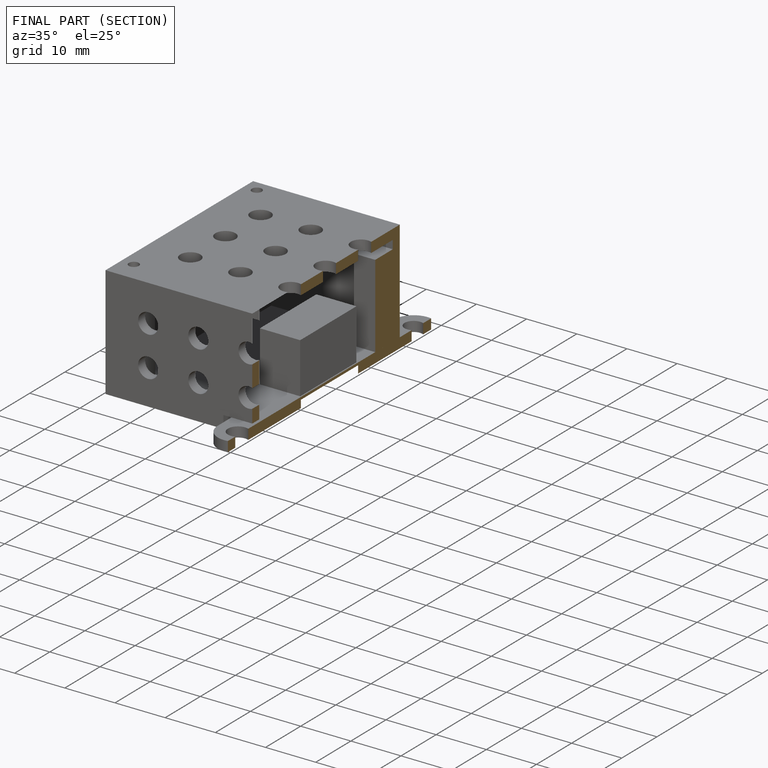
[diagram: finished part — half-section view (interior)]
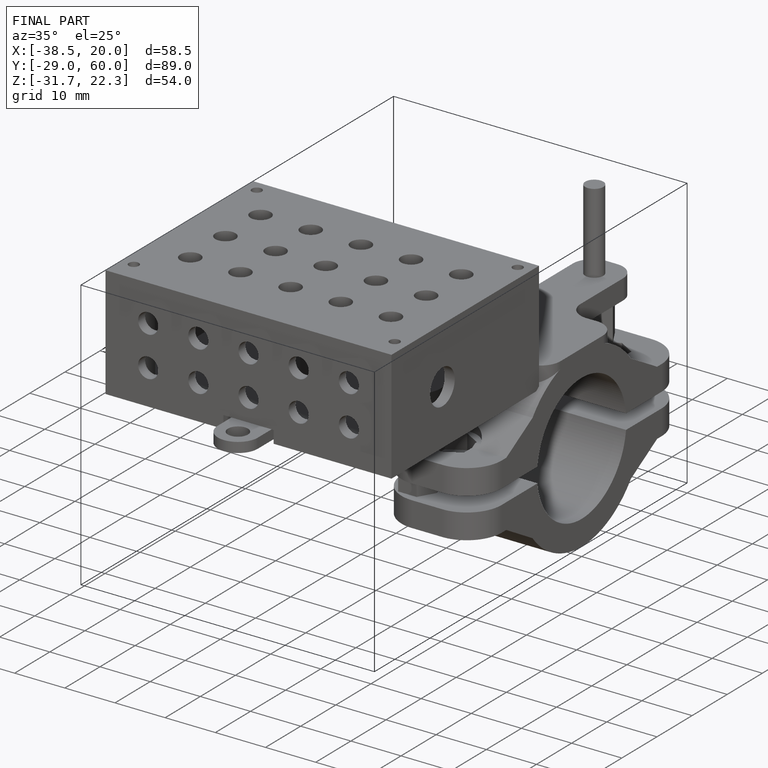
[diagram: finished part — iso view with bounding-box wireframe]
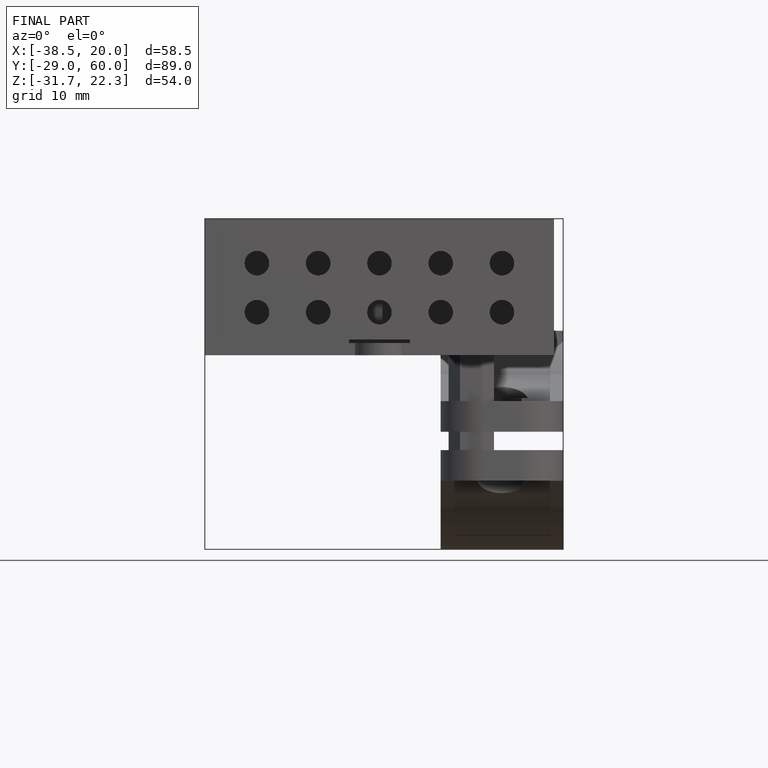
[diagram: finished part — front view with bounding-box wireframe]
